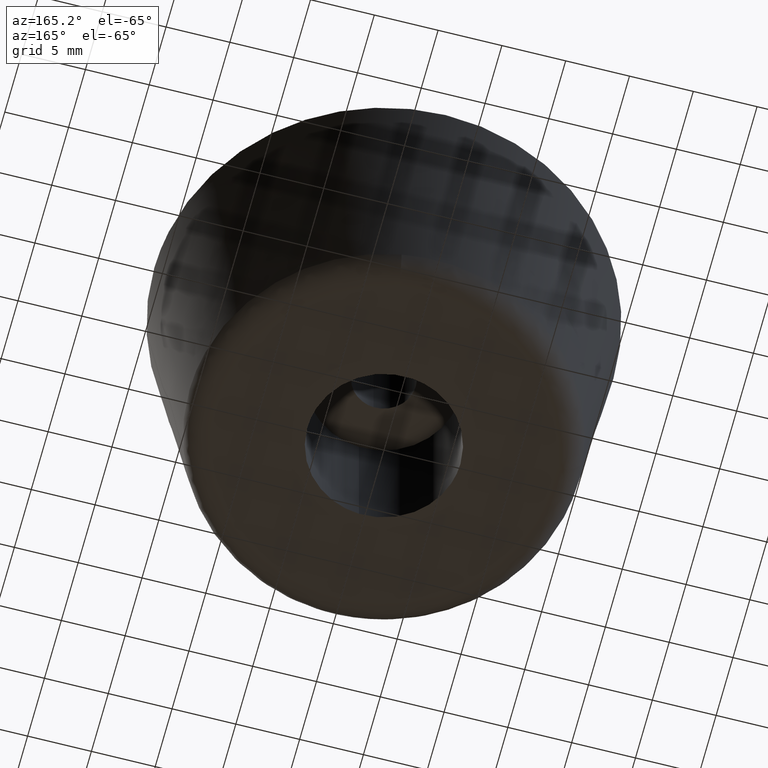
[diagram: clean part render]
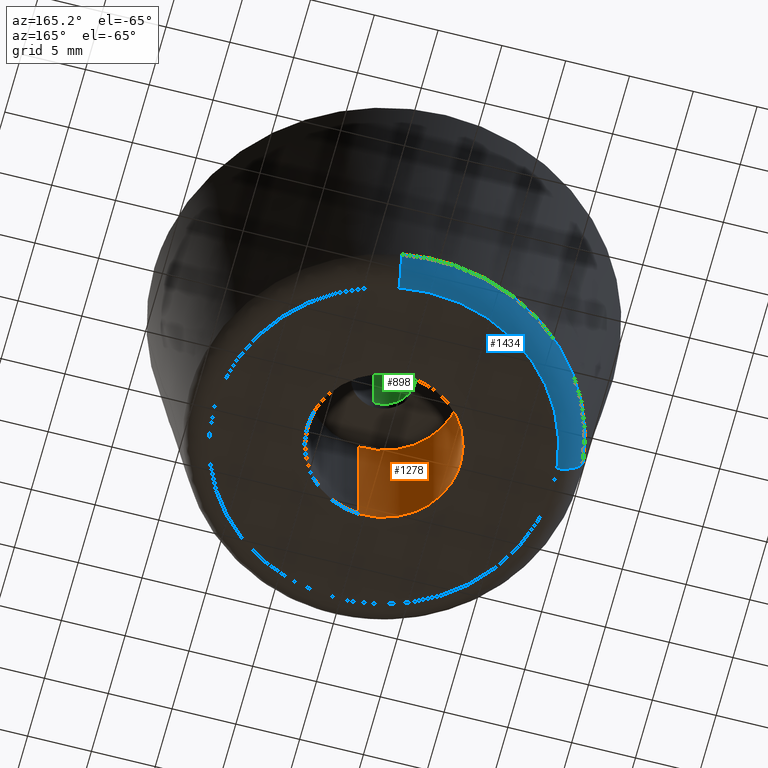
[diagram: same view with three faces highlighted in distinct colors, each labeled with its STEP entity id]
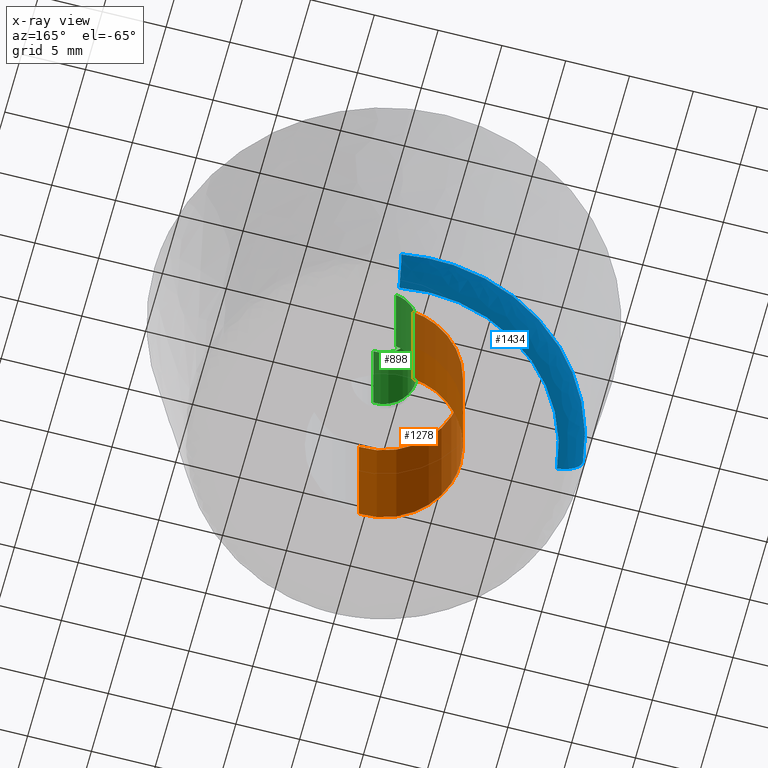
[diagram: x-ray of the same camera — body ghosted, the three highlighted faces saturated]
A machine part, auxiliary view with three faces highlighted in distinct colors.
The next image is the same camera in x-ray (body ghosted, the three faces saturated) — at least one of them is partly hidden behind the body in this view.
Their STEP definitions:

[orange] entity #1278 — the highlighted face is a freeform B-spline surface patch.
#1111=CARTESIAN_POINT('',(-0.708205407962288,5.958057158179415,4.827028E-016));
#1112=VERTEX_POINT('',#1111);
#1130=CARTESIAN_POINT('',(0.366291237240591,-5.988808790529278,4.718448E-016));
#1131=VERTEX_POINT('',#1130);
#1145=CARTESIAN_POINT('',(0.366291237240592,-5.988808790529278,11.999999999999799));
#1146=VERTEX_POINT('',#1145);
#1147=CARTESIAN_POINT('',(0.366291237240592,-5.988808790529278,11.999999999999799));
#1148=CARTESIAN_POINT('',(0.366291237240591,-5.988808790529278,4.718448E-016));
#1149=QUASI_UNIFORM_CURVE('',1,(#1147,#1148),.UNSPECIFIED.,.F.,.U.);
#1150=EDGE_CURVE('',#1146,#1131,#1149,.T.);
#1167=CARTESIAN_POINT('',(-0.708194383196514,5.958058468619257,11.999999999999799));
#1168=VERTEX_POINT('',#1167);
#1184=CARTESIAN_POINT('',(-0.708194383196514,5.958058468619257,11.999999999999799));
#1185=CARTESIAN_POINT('',(-0.708205407962288,5.958057158179415,4.827028E-016));
#1186=QUASI_UNIFORM_CURVE('',1,(#1184,#1185),.UNSPECIFIED.,.F.,.U.);
#1187=EDGE_CURVE('',#1168,#1112,#1186,.T.);
#1192=CARTESIAN_POINT('',(0.448818181452305,-5.983761226388277,12.299999999999796));
#1193=CARTESIAN_POINT('',(0.407672811164635,-5.986277785042132,12.299999999999798));
#1194=CARTESIAN_POINT('',(-5.622517553322059,-6.355100027740342,12.299999999999796));
#1195=CARTESIAN_POINT('',(-5.988808790531200,-0.366291237209142,12.299999999999800));
#1196=CARTESIAN_POINT('',(-6.334717180395164,5.289260945037006,12.299999999999796));
#1197=CARTESIAN_POINT('',(-0.666076370725064,5.963064832864401,12.299999999999802));
#1198=CARTESIAN_POINT('',(-0.624173762421173,5.968045593038357,12.299999999999796));
#1199=CARTESIAN_POINT('',(0.448818181452305,-5.983761226388277,-0.307499999999996));
#1200=CARTESIAN_POINT('',(0.407672811164635,-5.986277785042132,-0.307499999999996));
#1201=CARTESIAN_POINT('',(-5.622517553322059,-6.355100027740342,-0.307499999999996));
#1202=CARTESIAN_POINT('',(-5.988808790531200,-0.366291237209142,-0.307499999999996));
#1203=CARTESIAN_POINT('',(-6.334717180395164,5.289260945037006,-0.307499999999996));
#1204=CARTESIAN_POINT('',(-0.666076370725064,5.963064832864401,-0.307499999999996));
#1205=CARTESIAN_POINT('',(-0.624173762421173,5.968045593038357,-0.307499999999996));
#1213=(BOUNDED_SURFACE()B_SPLINE_SURFACE(2,1,((#1192,#1199),(#1193,#1200),(#1194,#1201),(#1195,#1202),(#1196,#1203),(#1197,#1204),(#1198,#1205)),.UNSPECIFIED.,.F.,.F.,.U.)B_SPLINE_SURFACE_WITH_KNOTS((3,1,2,1,3),(2,2),(0.0,0.097423091302818,10.038548588257100,19.582029065333199,19.679464871227321),(0.0,12.607499999999799),.UNSPECIFIED.)GEOMETRIC_REPRESENTATION_ITEM()RATIONAL_B_SPLINE_SURFACE(((1.005740710708698,1.005740710708698),(1.002870355354349,1.002870355354349),(0.707106781186548,0.707106781186548),(1.0,1.0),(0.718822509939086,0.718822509939086),(0.980146872359787,0.980146872359787),(0.982787943924448,0.982787943924448)))REPRESENTATION_ITEM('')SURFACE());
#1214=CARTESIAN_POINT('',(-6.0,0.0,0.0));
#1215=VERTEX_POINT('',#1214);
#1216=CARTESIAN_POINT('',(-6.0,0.0,0.0));
#1217=CARTESIAN_POINT('',(-6.000000000000001,5.329047155669044,0.0));
#1218=CARTESIAN_POINT('',(-0.708205407962288,5.958057158179415,4.827028E-016));
#1226=(BOUNDED_CURVE()B_SPLINE_CURVE(2,(#1216,#1217,#1218),.UNSPECIFIED.,.F.,.U.)B_SPLINE_CURVE_WITH_KNOTS((3,3),(0.0,0.229562473514411),.UNSPECIFIED.)CURVE()GEOMETRIC_REPRESENTATION_ITEM()RATIONAL_B_SPLINE_CURVE((1.0,0.731050832854345,0.956026754185469))REPRESENTATION_ITEM(''));
#1227=EDGE_CURVE('',#1215,#1112,#1226,.T.);
#1228=ORIENTED_EDGE('',*,*,#1227,.T.);
#1229=ORIENTED_EDGE('',*,*,#1187,.F.);
#1230=CARTESIAN_POINT('',(-6.0,0.0,11.999999999999799));
#1231=VERTEX_POINT('',#1230);
#1232=CARTESIAN_POINT('',(-6.0,0.0,11.999999999999799));
#1233=CARTESIAN_POINT('',(-6.000000000000002,5.329057085959975,11.999999999999801));
#1234=CARTESIAN_POINT('',(-0.708194383196514,5.958058468619257,11.999999999999796));
#1242=(BOUNDED_CURVE()B_SPLINE_CURVE(2,(#1232,#1233,#1234),.UNSPECIFIED.,.F.,.U.)B_SPLINE_CURVE_WITH_KNOTS((3,3),(0.0,0.229562786238015),.UNSPECIFIED.)CURVE()GEOMETRIC_REPRESENTATION_ITEM()RATIONAL_B_SPLINE_CURVE((1.0,0.731050466475852,0.956027367137448))REPRESENTATION_ITEM(''));
#1243=EDGE_CURVE('',#1231,#1168,#1242,.T.);
#1244=ORIENTED_EDGE('',*,*,#1243,.F.);
#1245=CARTESIAN_POINT('',(0.366291237240593,-5.988808790529279,11.999999999999803));
#1246=CARTESIAN_POINT('',(0.183316579823073,-6.0,11.999999999999806));
#1247=CARTESIAN_POINT('',(0.0,-6.0,11.999999999999799));
#1248=CARTESIAN_POINT('',(-6.0,-6.0,11.999999999999799));
#1249=CARTESIAN_POINT('',(-6.0,0.0,11.999999999999799));
#1257=(BOUNDED_CURVE()B_SPLINE_CURVE(2,(#1245,#1246,#1247,#1248,#1249),.UNSPECIFIED.,.F.,.U.)B_SPLINE_CURVE_WITH_KNOTS((3,2,3),(0.739332962240156,0.750000000000000,1.0),.UNSPECIFIED.)CURVE()GEOMETRIC_REPRESENTATION_ITEM()RATIONAL_B_SPLINE_CURVE((0.976072041669318,0.987502787901259,1.0,0.707106781186548,1.0))REPRESENTATION_ITEM(''));
#1258=EDGE_CURVE('',#1146,#1231,#1257,.T.);
#1259=ORIENTED_EDGE('',*,*,#1258,.F.);
#1260=ORIENTED_EDGE('',*,*,#1150,.T.);
#1261=CARTESIAN_POINT('',(0.366291237240591,-5.988808790529278,4.718448E-016));
#1262=CARTESIAN_POINT('',(0.183316579823071,-6.0,0.0));
#1263=CARTESIAN_POINT('',(0.0,-6.0,0.0));
#1264=CARTESIAN_POINT('',(-6.0,-6.0,0.0));
#1265=CARTESIAN_POINT('',(-6.0,0.0,0.0));
#1273=(BOUNDED_CURVE()B_SPLINE_CURVE(2,(#1261,#1262,#1263,#1264,#1265),.UNSPECIFIED.,.F.,.U.)B_SPLINE_CURVE_WITH_KNOTS((3,2,3),(0.739332962240156,0.750000000000000,1.0),.UNSPECIFIED.)CURVE()GEOMETRIC_REPRESENTATION_ITEM()RATIONAL_B_SPLINE_CURVE((0.976072041669318,0.987502787901259,1.0,0.707106781186548,1.0))REPRESENTATION_ITEM(''));
#1274=EDGE_CURVE('',#1131,#1215,#1273,.T.);
#1275=ORIENTED_EDGE('',*,*,#1274,.T.);
#1276=EDGE_LOOP('',(#1228,#1229,#1244,#1259,#1260,#1275));
#1277=FACE_OUTER_BOUND('',#1276,.T.);
#1278=ADVANCED_FACE('',(#1277),#1213,.F.);

[blue] entity #1434 — the highlighted face is a freeform B-spline surface patch.
#665=CARTESIAN_POINT('',(2.582459574393456,15.015421565838610,1.729772982827424));
#666=VERTEX_POINT('',#665);
#680=CARTESIAN_POINT('',(-15.138540831143590,1.719466125618749,1.729772982857377));
#681=VERTEX_POINT('',#680);
#682=CARTESIAN_POINT('',(-15.138540831143589,1.719466125618749,1.729772982857376));
#683=CARTESIAN_POINT('',(-13.603319271252902,15.235878000000000,1.729772999999896));
#684=CARTESIAN_POINT('',(0.0,15.235878000000000,1.729772999999895));
#685=CARTESIAN_POINT('',(1.300639622658635,15.235878000000000,1.729772999999895));
#686=CARTESIAN_POINT('',(2.582459574393456,15.015421565838606,1.729772982827424));
#694=(BOUNDED_CURVE()B_SPLINE_CURVE(2,(#682,#683,#684,#685,#686),.UNSPECIFIED.,.F.,.U.)B_SPLINE_CURVE_WITH_KNOTS((3,2,3),(0.019555763443539,0.250000000000000,0.279150973644510),.UNSPECIFIED.)CURVE()GEOMETRIC_REPRESENTATION_ITEM()RATIONAL_B_SPLINE_CURVE((0.957762333073104,0.730017783191878,1.0,0.965847509990854,0.939659646670916))REPRESENTATION_ITEM(''));
#695=EDGE_CURVE('',#681,#666,#694,.T.);
#1308=CARTESIAN_POINT('',(2.246571014500503,13.062435204911949,3.809857E-016));
#1309=VERTEX_POINT('',#1308);
#1325=CARTESIAN_POINT('',(2.582459574393456,15.015421565838610,1.729772982827424));
#1326=CARTESIAN_POINT('',(2.542478495189140,14.782956064788024,9.347097E-010));
#1327=CARTESIAN_POINT('',(2.246571014500503,13.062435204911942,3.809857E-016));
#1335=(BOUNDED_CURVE()B_SPLINE_CURVE(2,(#1325,#1326,#1327),.UNSPECIFIED.,.F.,.U.)B_SPLINE_CURVE_WITH_KNOTS((3,3),(-1.706259834883567,-0.283065972947226),.UNSPECIFIED.)CURVE()GEOMETRIC_REPRESENTATION_ITEM()RATIONAL_B_SPLINE_CURVE((0.870995898622574,0.657391567659871,0.874224248252915))REPRESENTATION_ITEM(''));
#1336=EDGE_CURVE('',#666,#1309,#1335,.T.);
#1343=CARTESIAN_POINT('',(-13.169540917878781,1.495823127996194,3.724157E-016));
#1344=VERTEX_POINT('',#1343);
#1345=CARTESIAN_POINT('',(-15.138540831143596,1.719466125618748,1.729772982857376));
#1346=CARTESIAN_POINT('',(-14.904169224480970,1.692845723884960,1.739169E-009));
#1347=CARTESIAN_POINT('',(-13.169540917878782,1.495823127996194,3.724157E-016));
#1355=(BOUNDED_CURVE()B_SPLINE_CURVE(2,(#1345,#1346,#1347),.UNSPECIFIED.,.F.,.U.)B_SPLINE_CURVE_WITH_KNOTS((3,3),(-1.706259834916219,-0.283065973446785),.UNSPECIFIED.)CURVE()GEOMETRIC_REPRESENTATION_ITEM()RATIONAL_B_SPLINE_CURVE((0.891039109869104,0.672519352002961,0.894341749572818))REPRESENTATION_ITEM(''));
#1356=EDGE_CURVE('',#681,#1344,#1355,.T.);
#1391=CARTESIAN_POINT('',(-15.151822733035020,1.720974710925192,1.859054741014439));
#1392=CARTESIAN_POINT('',(-13.430848022109831,16.872797443960213,1.859054741014438));
#1393=CARTESIAN_POINT('',(1.720974710925190,15.151822733035020,1.859054741014439));
#1394=CARTESIAN_POINT('',(2.154612949428804,15.102569223717781,1.859054741014439));
#1395=CARTESIAN_POINT('',(2.584724483468440,15.028595590856785,1.859054741014439));
#1396=CARTESIAN_POINT('',(-15.012585450011510,1.705159858341221,-0.124469042432430));
#1397=CARTESIAN_POINT('',(-13.307425591670290,16.717745308352736,-0.124469042432430));
#1398=CARTESIAN_POINT('',(1.705159858341220,15.012585450011510,-0.124469042432430));
#1399=CARTESIAN_POINT('',(2.134813189470442,14.963784554543933,-0.124469042432430));
#1400=CARTESIAN_POINT('',(2.560972224695121,14.890490700468392,-0.124469042432430));
#1401=CARTESIAN_POINT('',(-13.040961558708281,1.481218823907727,0.004190875119762));
#1402=CARTESIAN_POINT('',(-11.559742734800546,14.522180382616002,0.004190875119762));
#1403=CARTESIAN_POINT('',(1.481218823907727,13.040961558708281,0.004190875119762));
#1404=CARTESIAN_POINT('',(1.854445180785705,12.998569753249951,0.004190875119762));
#1405=CARTESIAN_POINT('',(2.224636152538473,12.934901683771100,0.004190875119762));
#1413=(BOUNDED_SURFACE()B_SPLINE_SURFACE(2,2,((#1391,#1396,#1401),(#1392,#1397,#1402),(#1393,#1398,#1403),(#1394,#1399,#1404),(#1395,#1400,#1405)),.UNSPECIFIED.,.F.,.F.,.U.)B_SPLINE_SURFACE_WITH_KNOTS((3,2,3),(3,3),(0.0,25.265777087064269,26.276407206733928),(0.0,3.300162824459903),.UNSPECIFIED.)GEOMETRIC_REPRESENTATION_ITEM()RATIONAL_B_SPLINE_SURFACE(((0.913967894627093,0.649425582406616,0.917600504500287),(0.646272896077609,0.459213233195741,0.648841539152350),(0.913967894627093,0.649425582406616,0.917600504500287),(0.903260104896867,0.641817095694207,0.906850156138710),(0.893408937528120,0.634817287338308,0.896959834825873)))REPRESENTATION_ITEM('')SURFACE());
#1414=CARTESIAN_POINT('',(-13.169540917878782,1.495823127996194,3.724157E-016));
#1415=CARTESIAN_POINT('',(-11.833998614508209,13.254218000000000,0.0));
#1416=CARTESIAN_POINT('',(0.0,13.254218000000000,0.0));
#1417=CARTESIAN_POINT('',(1.131471458268347,13.254218000000002,0.0));
#1418=CARTESIAN_POINT('',(2.246571014500502,13.062435204911953,3.809857E-016));
#1426=(BOUNDED_CURVE()B_SPLINE_CURVE(2,(#1414,#1415,#1416,#1417,#1418),.UNSPECIFIED.,.F.,.U.)B_SPLINE_CURVE_WITH_KNOTS((3,2,3),(0.019555763445378,0.250000000000000,0.279150973645332),.UNSPECIFIED.)CURVE()GEOMETRIC_REPRESENTATION_ITEM()RATIONAL_B_SPLINE_CURVE((0.957762333069469,0.730017783194033,1.0,0.965847509989891,0.939659646669439))REPRESENTATION_ITEM(''));
#1427=EDGE_CURVE('',#1344,#1309,#1426,.T.);
#1428=ORIENTED_EDGE('',*,*,#1427,.F.);
#1429=ORIENTED_EDGE('',*,*,#1356,.F.);
#1430=ORIENTED_EDGE('',*,*,#695,.T.);
#1431=ORIENTED_EDGE('',*,*,#1336,.T.);
#1432=EDGE_LOOP('',(#1428,#1429,#1430,#1431));
#1433=FACE_OUTER_BOUND('',#1432,.T.);
#1434=ADVANCED_FACE('',(#1433),#1413,.T.);

[green] entity #898 — the highlighted face is a freeform B-spline surface patch.
#735=CARTESIAN_POINT('',(-0.295084862496126,2.482523901984653,22.0));
#736=VERTEX_POINT('',#735);
#754=CARTESIAN_POINT('',(-0.295084871198916,2.482523900950200,12.799999999999800));
#755=VERTEX_POINT('',#754);
#756=CARTESIAN_POINT('',(-0.295084862496126,2.482523901984653,22.0));
#757=CARTESIAN_POINT('',(-0.295084871198916,2.482523900950200,12.799999999999800));
#758=QUASI_UNIFORM_CURVE('',1,(#756,#757),.UNSPECIFIED.,.F.,.U.);
#759=EDGE_CURVE('',#736,#755,#758,.T.);
#778=CARTESIAN_POINT('',(0.152621348864321,-2.495336996053005,12.799999999999800));
#779=VERTEX_POINT('',#778);
#793=CARTESIAN_POINT('',(0.152621348864321,-2.495336996053005,22.0));
#794=VERTEX_POINT('',#793);
#795=CARTESIAN_POINT('',(0.152621348864321,-2.495336996053005,22.0));
#796=CARTESIAN_POINT('',(0.152621348864321,-2.495336996053005,12.799999999999800));
#797=QUASI_UNIFORM_CURVE('',1,(#795,#796),.UNSPECIFIED.,.F.,.U.);
#798=EDGE_CURVE('',#794,#779,#797,.T.);
#816=CARTESIAN_POINT('',(0.152621348837143,-2.495336996054667,22.230000000000011));
#817=CARTESIAN_POINT('',(-2.342715647217524,-2.647958344891809,22.230000000000011));
#818=CARTESIAN_POINT('',(-2.495336996054667,-0.152621348837143,22.230000000000011));
#819=CARTESIAN_POINT('',(-2.639465491831319,2.203858727098751,22.230000000000008));
#820=CARTESIAN_POINT('',(-0.295085586641896,2.482523815909166,22.230000000000011));
#821=CARTESIAN_POINT('',(0.152621348837143,-2.495336996054667,12.564249999999790));
#822=CARTESIAN_POINT('',(-2.342715647217524,-2.647958344891809,12.564249999999793));
#823=CARTESIAN_POINT('',(-2.495336996054667,-0.152621348837143,12.564249999999790));
#824=CARTESIAN_POINT('',(-2.639465491831319,2.203858727098751,12.564249999999792));
#825=CARTESIAN_POINT('',(-0.295085586641896,2.482523815909166,12.564249999999795));
#833=(BOUNDED_SURFACE()B_SPLINE_SURFACE(2,1,((#816,#821),(#817,#822),(#818,#823),(#819,#824),(#820,#825)),.UNSPECIFIED.,.F.,.F.,.U.)B_SPLINE_SURFACE_WITH_KNOTS((3,2,3),(2,2),(0.0,4.142135623730949,8.118585822512660),(0.0,9.665750000000216),.UNSPECIFIED.)GEOMETRIC_REPRESENTATION_ITEM()RATIONAL_B_SPLINE_SURFACE(((1.0,1.0),(0.707106781186548,0.707106781186548),(1.0,1.0),(0.718822509939086,0.718822509939086),(0.977505800795127,0.977505800795127)))REPRESENTATION_ITEM('')SURFACE());
#834=CARTESIAN_POINT('',(-2.500000000000000,0.0,22.0));
#835=VERTEX_POINT('',#834);
#836=CARTESIAN_POINT('',(-2.500000000000000,0.0,22.0));
#837=CARTESIAN_POINT('',(-2.500000000000000,2.220437619388906,22.000000000000007));
#838=CARTESIAN_POINT('',(-0.295084862496126,2.482523901984654,22.000000000000004));
#846=(BOUNDED_CURVE()B_SPLINE_CURVE(2,(#836,#837,#838),.UNSPECIFIED.,.F.,.U.)B_SPLINE_CURVE_WITH_KNOTS((3,3),(0.0,0.229562572111272),.UNSPECIFIED.)CURVE()GEOMETRIC_REPRESENTATION_ITEM()RATIONAL_B_SPLINE_CURVE((1.0,0.731050717340937,0.956026947439442))REPRESENTATION_ITEM(''));
#847=EDGE_CURVE('',#835,#736,#846,.T.);
#848=ORIENTED_EDGE('',*,*,#847,.F.);
#849=CARTESIAN_POINT('',(0.152621348864321,-2.495336996053005,21.999999999999996));
#850=CARTESIAN_POINT('',(0.076381908273728,-2.500000000000000,22.000000000000004));
#851=CARTESIAN_POINT('',(0.0,-2.500000000000000,22.0));
#852=CARTESIAN_POINT('',(-2.500000000000000,-2.500000000000000,22.000000000000007));
#853=CARTESIAN_POINT('',(-2.500000000000000,0.0,22.0));
#861=(BOUNDED_CURVE()B_SPLINE_CURVE(2,(#849,#850,#851,#852,#853),.UNSPECIFIED.,.F.,.U.)B_SPLINE_CURVE_WITH_KNOTS((3,2,3),(0.739332962238210,0.750000000000000,1.0),.UNSPECIFIED.)CURVE()GEOMETRIC_REPRESENTATION_ITEM()RATIONAL_B_SPLINE_CURVE((0.976072041665146,0.987502787898978,1.0,0.707106781186548,1.0))REPRESENTATION_ITEM(''));
#862=EDGE_CURVE('',#794,#835,#861,.T.);
#863=ORIENTED_EDGE('',*,*,#862,.F.);
#864=ORIENTED_EDGE('',*,*,#798,.T.);
#865=CARTESIAN_POINT('',(-2.500000000000000,0.0,12.799999999999800));
#866=VERTEX_POINT('',#865);
#867=CARTESIAN_POINT('',(0.152621348864321,-2.495336996053005,12.799999999999805));
#868=CARTESIAN_POINT('',(0.076381908273728,-2.500000000000000,12.799999999999798));
#869=CARTESIAN_POINT('',(0.0,-2.500000000000000,12.799999999999800));
#870=CARTESIAN_POINT('',(-2.500000000000000,-2.500000000000000,12.799999999999798));
#871=CARTESIAN_POINT('',(-2.500000000000000,0.0,12.799999999999800));
#879=(BOUNDED_CURVE()B_SPLINE_CURVE(2,(#867,#868,#869,#870,#871),.UNSPECIFIED.,.F.,.U.)B_SPLINE_CURVE_WITH_KNOTS((3,2,3),(0.739332962238210,0.750000000000000,1.0),.UNSPECIFIED.)CURVE()GEOMETRIC_REPRESENTATION_ITEM()RATIONAL_B_SPLINE_CURVE((0.976072041665146,0.987502787898978,1.0,0.707106781186548,1.0))REPRESENTATION_ITEM(''));
#880=EDGE_CURVE('',#779,#866,#879,.T.);
#881=ORIENTED_EDGE('',*,*,#880,.T.);
#882=CARTESIAN_POINT('',(-2.500000000000000,0.0,12.799999999999800));
#883=CARTESIAN_POINT('',(-2.500000000000000,2.220437603711284,12.799999999999798));
#884=CARTESIAN_POINT('',(-0.295084871198916,2.482523900950199,12.799999999999802));
#892=(BOUNDED_CURVE()B_SPLINE_CURVE(2,(#882,#883,#884),.UNSPECIFIED.,.F.,.U.)B_SPLINE_CURVE_WITH_KNOTS((3,3),(0.0,0.229562570926349),.UNSPECIFIED.)CURVE()GEOMETRIC_REPRESENTATION_ITEM()RATIONAL_B_SPLINE_CURVE((1.0,0.731050718729161,0.956026945116942))REPRESENTATION_ITEM(''));
#893=EDGE_CURVE('',#866,#755,#892,.T.);
#894=ORIENTED_EDGE('',*,*,#893,.T.);
#895=ORIENTED_EDGE('',*,*,#759,.F.);
#896=EDGE_LOOP('',(#848,#863,#864,#881,#894,#895));
#897=FACE_OUTER_BOUND('',#896,.T.);
#898=ADVANCED_FACE('',(#897),#833,.F.);